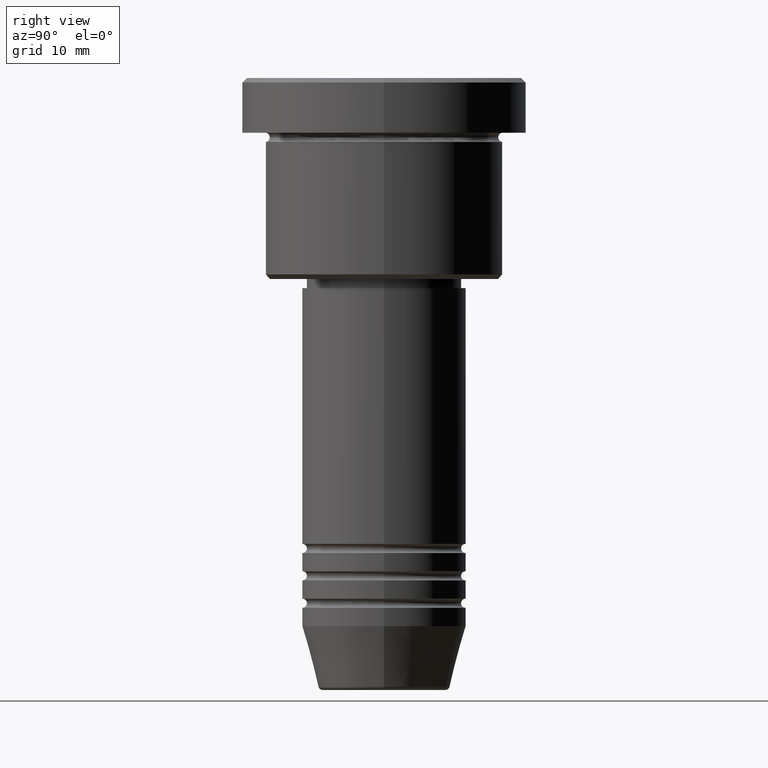
[diagram: clean part render]
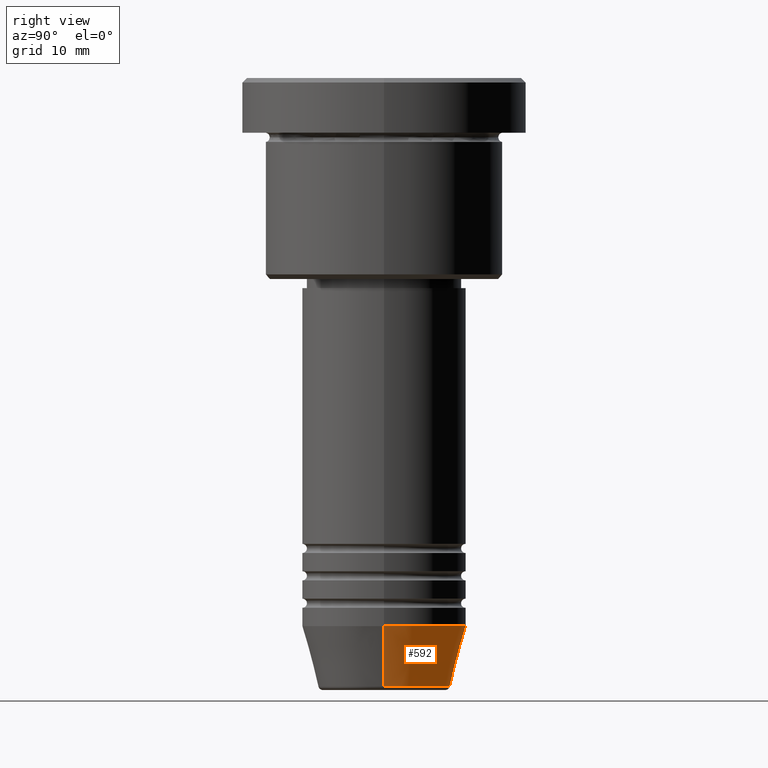
[diagram: same view with one face highlighted and labeled with its STEP entity id]
A machine part, right view. The second image highlights one B-rep face of the part: STEP entity #592.
In plain terms, the highlighted conical surface has half-angle 15 deg.
Its self-contained STEP definition (entity closure, byte-faithful):
#11 = EDGE_CURVE ( 'NONE', #979, #631, #141, .T. ) ;
#47 = ORIENTED_EDGE ( 'NONE', *, *, #11, .F. ) ;
#61 = CARTESIAN_POINT ( 'NONE',  ( -7.223655072137189492, 9.934123627281765110E-16, -66.62940952255127058 ) ) ;
#72 = AXIS2_PLACEMENT_3D ( 'NONE', #352, #1056, #1066 ) ;
#74 = AXIS2_PLACEMENT_3D ( 'NONE', #737, #922, #86 ) ;
#86 = DIRECTION ( 'NONE',  ( 1.000000000000000000, 0.000000000000000000, 0.000000000000000000 ) ) ;
#107 = VECTOR ( 'NONE', #1128, 1000.000000000000000 ) ;
#122 = EDGE_LOOP ( 'NONE', ( #314, #846, #342, #47 ) ) ;
#141 = LINE ( 'NONE', #582, #595 ) ;
#159 = FACE_OUTER_BOUND ( 'NONE', #122, .T. ) ;
#187 = AXIS2_PLACEMENT_3D ( 'NONE', #857, #401, #764 ) ;
#282 = CIRCLE ( 'NONE', #187, 7.223655072137188604 ) ;
#314 = ORIENTED_EDGE ( 'NONE', *, *, #974, .T. ) ;
#342 = ORIENTED_EDGE ( 'NONE', *, *, #788, .F. ) ;
#352 = CARTESIAN_POINT ( 'NONE',  ( 0.000000000000000000, 0.000000000000000000, -60.00000000000000000 ) ) ;
#401 = DIRECTION ( 'NONE',  ( -0.000000000000000000, -0.000000000000000000, 1.000000000000000000 ) ) ;
#467 = CONICAL_SURFACE ( 'NONE', #72, 9.000000000000000000, 0.2617993877991500740 ) ;
#483 = CIRCLE ( 'NONE', #74, 9.000000000000000000 ) ;
#484 = DIRECTION ( 'NONE',  ( 0.2588190451025213501, 0.000000000000000000, 0.9659258262890680902 ) ) ;
#490 = LINE ( 'NONE', #766, #107 ) ;
#511 = CARTESIAN_POINT ( 'NONE',  ( 9.000000000000000000, 0.000000000000000000, -60.00000000000000000 ) ) ;
#516 = VERTEX_POINT ( 'NONE', #666 ) ;
#531 = EDGE_CURVE ( 'NONE', #1047, #516, #490, .T. ) ;
#582 = CARTESIAN_POINT ( 'NONE',  ( 9.000000000000000000, 0.000000000000000000, -60.00000000000000000 ) ) ;
#592 = ADVANCED_FACE ( 'NONE', ( #159 ), #467, .T. ) ;
#595 = VECTOR ( 'NONE', #484, 1000.000000000000000 ) ;
#631 = VERTEX_POINT ( 'NONE', #511 ) ;
#666 = CARTESIAN_POINT ( 'NONE',  ( -9.000000000000000000, 1.102182119232617714E-15, -60.00000000000000000 ) ) ;
#737 = CARTESIAN_POINT ( 'NONE',  ( 0.000000000000000000, 0.000000000000000000, -60.00000000000000000 ) ) ;
#764 = DIRECTION ( 'NONE',  ( 1.000000000000000000, 0.000000000000000000, 0.000000000000000000 ) ) ;
#766 = CARTESIAN_POINT ( 'NONE',  ( -9.000000000000000000, 1.102182119232617714E-15, -60.00000000000000000 ) ) ;
#788 = EDGE_CURVE ( 'NONE', #631, #516, #483, .T. ) ;
#846 = ORIENTED_EDGE ( 'NONE', *, *, #531, .T. ) ;
#857 = CARTESIAN_POINT ( 'NONE',  ( 0.000000000000000000, 0.000000000000000000, -66.62940952255127058 ) ) ;
#922 = DIRECTION ( 'NONE',  ( -0.000000000000000000, -0.000000000000000000, 1.000000000000000000 ) ) ;
#974 = EDGE_CURVE ( 'NONE', #979, #1047, #282, .T. ) ;
#979 = VERTEX_POINT ( 'NONE', #1125 ) ;
#1047 = VERTEX_POINT ( 'NONE', #61 ) ;
#1056 = DIRECTION ( 'NONE',  ( -0.000000000000000000, -0.000000000000000000, 1.000000000000000000 ) ) ;
#1066 = DIRECTION ( 'NONE',  ( 1.000000000000000000, 0.000000000000000000, 0.000000000000000000 ) ) ;
#1125 = CARTESIAN_POINT ( 'NONE',  ( 7.223655072137188604, 0.000000000000000000, -66.62940952255127058 ) ) ;
#1128 = DIRECTION ( 'NONE',  ( -0.2588190451025213501, 3.169619151431772337E-17, 0.9659258262890680902 ) ) ;